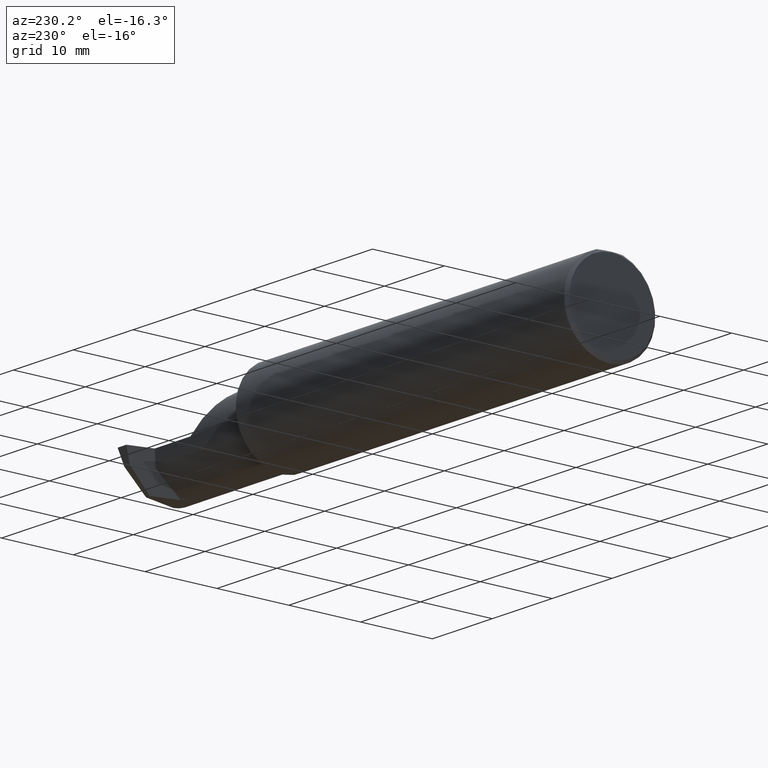
[diagram: clean part render]
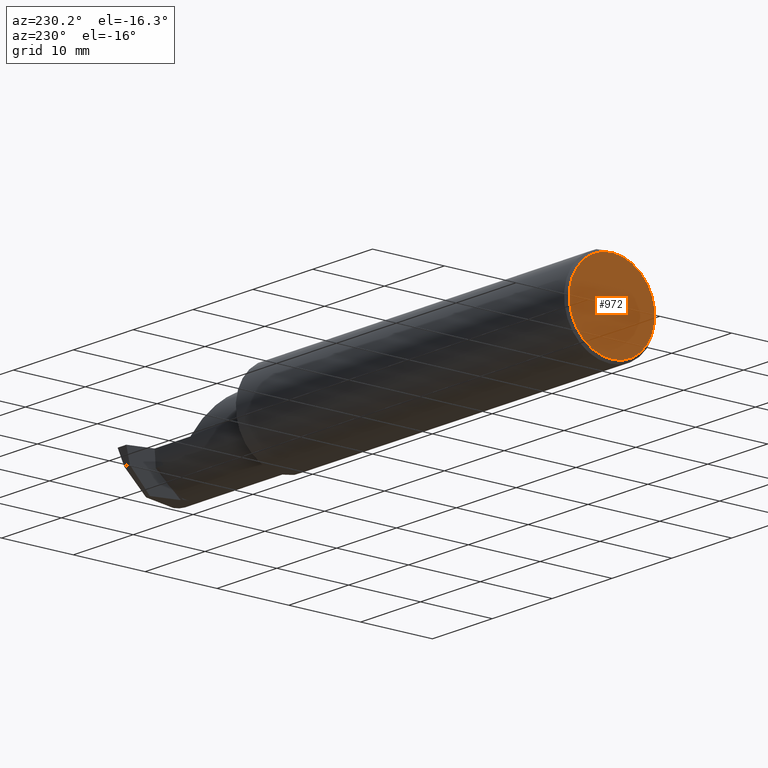
[diagram: same view with one face highlighted and labeled with its STEP entity id]
A machine part, auxiliary view. The second image highlights one B-rep face of the part: STEP entity #972.
In plain terms, the highlighted planar face has unit normal (1, 0, 0).
Its self-contained STEP definition (entity closure, byte-faithful):
#122 = DIRECTION ( 'NONE',  ( 1.000000000000000000, 0.000000000000000000, 0.000000000000000000 ) ) ;
#126 = EDGE_CURVE ( 'NONE', #590, #614, #870, .T. ) ;
#158 = AXIS2_PLACEMENT_3D ( 'NONE', #702, #918, #979 ) ;
#265 = DIRECTION ( 'NONE',  ( 0.000000000000000000, 0.000000000000000000, -1.000000000000000000 ) ) ;
#345 = ORIENTED_EDGE ( 'NONE', *, *, #742, .T. ) ;
#361 = CARTESIAN_POINT ( 'NONE',  ( 0.000000000000000000, 2.967931517733600783E-17, 0.2348499999999984211 ) ) ;
#380 = AXIS2_PLACEMENT_3D ( 'NONE', #964, #122, #265 ) ;
#521 = AXIS2_PLACEMENT_3D ( 'NONE', #786, #641, #945 ) ;
#524 = PLANE ( 'NONE',  #380 ) ;
#590 = VERTEX_POINT ( 'NONE', #780 ) ;
#603 = FACE_OUTER_BOUND ( 'NONE', #616, .T. ) ;
#614 = VERTEX_POINT ( 'NONE', #361 ) ;
#616 = EDGE_LOOP ( 'NONE', ( #712, #345 ) ) ;
#641 = DIRECTION ( 'NONE',  ( -1.000000000000000000, -0.000000000000000000, -0.000000000000000000 ) ) ;
#702 = CARTESIAN_POINT ( 'NONE',  ( 0.000000000000000000, 0.000000000000000000, 0.000000000000000000 ) ) ;
#712 = ORIENTED_EDGE ( 'NONE', *, *, #126, .T. ) ;
#742 = EDGE_CURVE ( 'NONE', #614, #590, #761, .T. ) ;
#761 = CIRCLE ( 'NONE', #521, 0.2348499999999984211 ) ;
#780 = CARTESIAN_POINT ( 'NONE',  ( 0.000000000000000000, 0.000000000000000000, -0.2348499999999984211 ) ) ;
#786 = CARTESIAN_POINT ( 'NONE',  ( 0.000000000000000000, 0.000000000000000000, 0.000000000000000000 ) ) ;
#870 = CIRCLE ( 'NONE', #158, 0.2348499999999984211 ) ;
#918 = DIRECTION ( 'NONE',  ( -1.000000000000000000, -0.000000000000000000, -0.000000000000000000 ) ) ;
#945 = DIRECTION ( 'NONE',  ( 0.000000000000000000, 0.000000000000000000, -1.000000000000000000 ) ) ;
#964 = CARTESIAN_POINT ( 'NONE',  ( 0.000000000000000000, 0.000000000000000000, 0.000000000000000000 ) ) ;
#972 = ADVANCED_FACE ( 'NONE', ( #603 ), #524, .F. ) ;
#979 = DIRECTION ( 'NONE',  ( 0.000000000000000000, 0.000000000000000000, -1.000000000000000000 ) ) ;